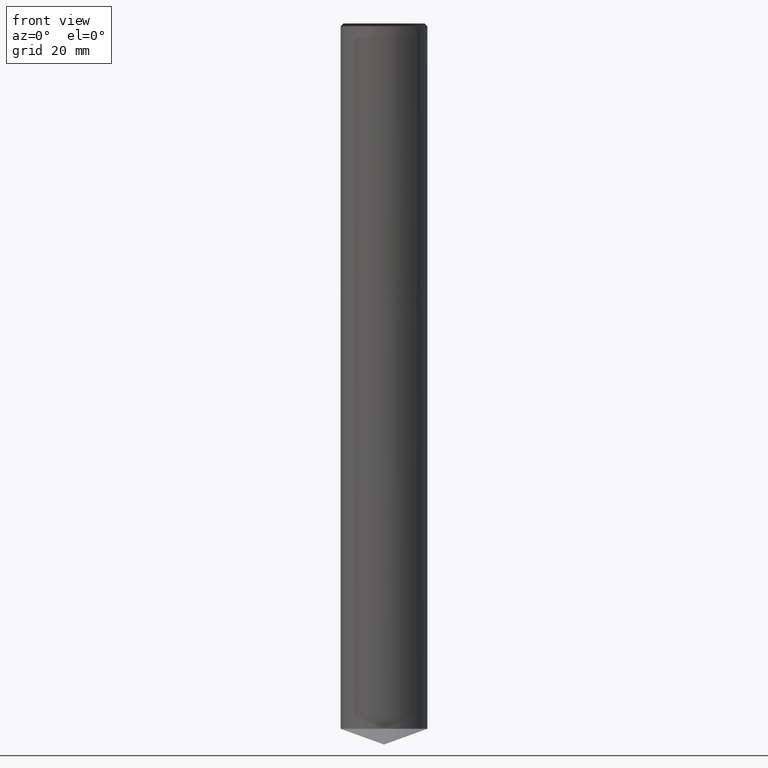
[diagram: clean part render]
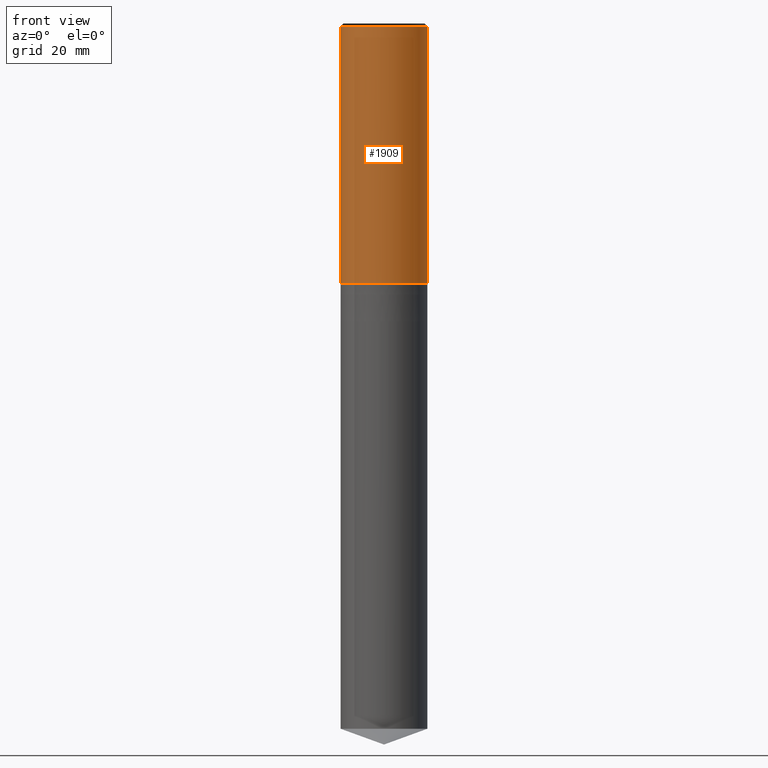
[diagram: same view with one face highlighted and labeled with its STEP entity id]
A machine part, front view. The second image highlights one B-rep face of the part: STEP entity #1909.
In plain terms, the highlighted face is a freeform B-spline surface patch.
Its self-contained STEP definition (entity closure, byte-faithful):
#1581=CARTESIAN_POINT('',(8.0,0.0,0.0));
#1585=CARTESIAN_POINT('',(-8.0,0.0,0.0));
#1586=CARTESIAN_POINT('',(8.0,0.0,47.5));
#1590=CARTESIAN_POINT('',(-8.0,0.0,47.5));
#1600=CARTESIAN_POINT('',(-8.0,-8.0,0.0));
#1601=CARTESIAN_POINT('',(0.0,-8.0,0.0));
#1602=CARTESIAN_POINT('',(8.0,-8.0,0.0));
#1603=CARTESIAN_POINT('',(-8.0,-8.0,47.5));
#1604=CARTESIAN_POINT('',(0.0,-8.0,47.5));
#1605=CARTESIAN_POINT('',(8.0,-8.0,47.5));
#1890=(
BOUNDED_SURFACE()
B_SPLINE_SURFACE(1,2,(
(#1585,#1600,#1601,#1602,#1581),
(#1590,#1603,#1604,#1605,#1586)
), .UNSPECIFIED.,.F.,.F.,.F.)
B_SPLINE_SURFACE_WITH_KNOTS((2,2),(3,2,3),(
0.0,1.0),(
0.0,0.5,1.0), .UNSPECIFIED.)
GEOMETRIC_REPRESENTATION_ITEM()
RATIONAL_B_SPLINE_SURFACE(((1.0,0.707106781187,1.0,0.707106781187,1.0),
(1.0,0.707106781187,1.0,0.707106781187,1.0)
))
REPRESENTATION_ITEM('')
SURFACE()
);
#1891=(
BOUNDED_CURVE()
B_SPLINE_CURVE(2,(#1581,#1602,#1601,#1600,#1585),.UNSPECIFIED.,.F.,.F.)
B_SPLINE_CURVE_WITH_KNOTS((3,2,3),
(0.0,0.5,1.0),.UNSPECIFIED.)
CURVE()
GEOMETRIC_REPRESENTATION_ITEM()
RATIONAL_B_SPLINE_CURVE((1.0,0.707106781187,1.0,0.707106781187,1.0))
REPRESENTATION_ITEM('')
);
#1892=(
BOUNDED_CURVE()
B_SPLINE_CURVE(1,(#1585,#1590),.UNSPECIFIED.,.F.,.F.)
B_SPLINE_CURVE_WITH_KNOTS((2,2),
(0.0,1.0),.UNSPECIFIED.)
CURVE()
GEOMETRIC_REPRESENTATION_ITEM()
RATIONAL_B_SPLINE_CURVE((1.0,1.0))
REPRESENTATION_ITEM('')
);
#1893=(
BOUNDED_CURVE()
B_SPLINE_CURVE(2,(#1590,#1603,#1604,#1605,#1586),.UNSPECIFIED.,.F.,.F.)
B_SPLINE_CURVE_WITH_KNOTS((3,2,3),
(0.0,0.5,1.0),.UNSPECIFIED.)
CURVE()
GEOMETRIC_REPRESENTATION_ITEM()
RATIONAL_B_SPLINE_CURVE((1.0,0.707106781187,1.0,0.707106781187,1.0))
REPRESENTATION_ITEM('')
);
#1894=(
BOUNDED_CURVE()
B_SPLINE_CURVE(1,(#1586,#1581),.UNSPECIFIED.,.F.,.F.)
B_SPLINE_CURVE_WITH_KNOTS((2,2),
(0.0,1.0),.UNSPECIFIED.)
CURVE()
GEOMETRIC_REPRESENTATION_ITEM()
RATIONAL_B_SPLINE_CURVE((1.0,1.0))
REPRESENTATION_ITEM('')
);
#1895=VERTEX_POINT('',#1581);
#1896=VERTEX_POINT('',#1585);
#1897=VERTEX_POINT('',#1586);
#1898=VERTEX_POINT('',#1590);
#1899=EDGE_CURVE('',#1895,#1896,#1891,.T.);
#1900=EDGE_CURVE('',#1896,#1898,#1892,.T.);
#1901=EDGE_CURVE('',#1898,#1897,#1893,.T.);
#1902=EDGE_CURVE('',#1897,#1895,#1894,.T.);
#1903=ORIENTED_EDGE('',*,*,#1899,.T.);
#1904=ORIENTED_EDGE('',*,*,#1900,.T.);
#1905=ORIENTED_EDGE('',*,*,#1901,.T.);
#1906=ORIENTED_EDGE('',*,*,#1902,.T.);
#1907=EDGE_LOOP('',(#1903,#1904,#1905,#1906));
#1908=FACE_OUTER_BOUND('',#1907,.T.);
#1909=ADVANCED_FACE('',(#1908),#1890,.T.);